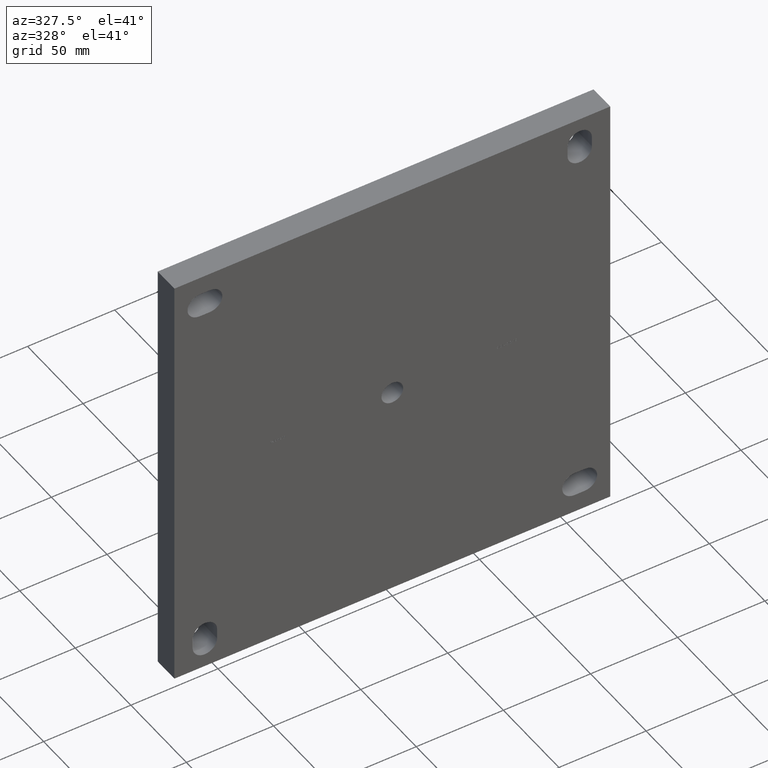
[diagram: clean part render]
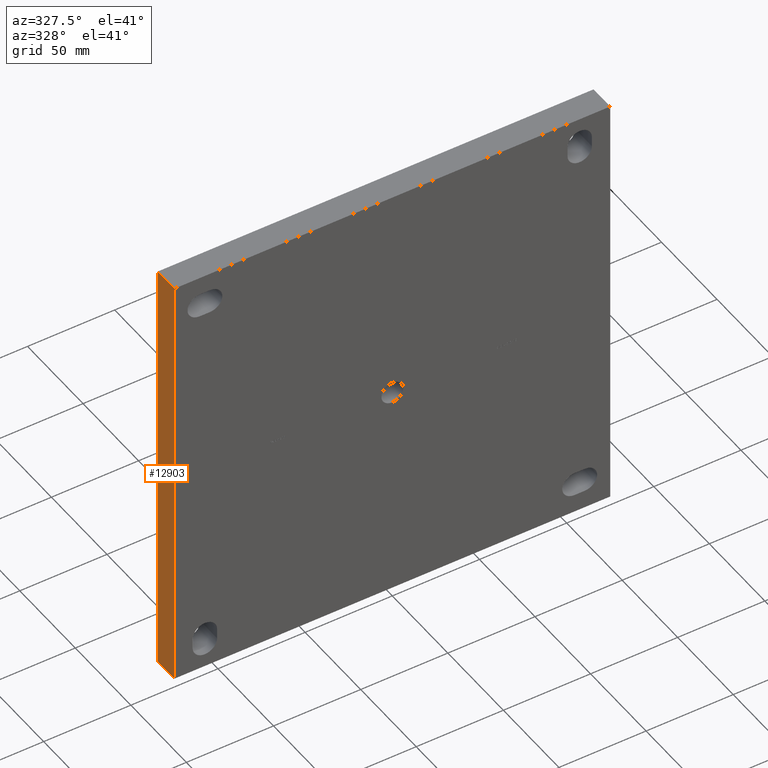
[diagram: same view with one face highlighted and labeled with its STEP entity id]
A machine part, auxiliary view. The second image highlights one B-rep face of the part: STEP entity #12903.
In plain terms, the highlighted planar face has unit normal (1, 0, -0).
Its self-contained STEP definition (entity closure, byte-faithful):
#53 = FACE_OUTER_BOUND ( 'NONE', #9171, .T. ) ;
#97 = VECTOR ( 'NONE', #4592, 1000.000000000000000 ) ;
#729 = EDGE_CURVE ( 'NONE', #4932, #4427, #12748, .T. ) ;
#918 = AXIS2_PLACEMENT_3D ( 'NONE', #8990, #13225, #13267 ) ;
#1365 = VERTEX_POINT ( 'NONE', #1394 ) ;
#1375 = ORIENTED_EDGE ( 'NONE', *, *, #729, .F. ) ;
#1394 = CARTESIAN_POINT ( 'NONE',  ( -124.9999999999999858, 15.00000000000000000, -124.9999999999999858 ) ) ;
#1727 = PLANE ( 'NONE',  #918 ) ;
#1779 = ORIENTED_EDGE ( 'NONE', *, *, #3617, .F. ) ;
#3583 = LINE ( 'NONE', #4635, #97 ) ;
#3617 = EDGE_CURVE ( 'NONE', #1365, #4932, #3583, .T. ) ;
#3826 = ORIENTED_EDGE ( 'NONE', *, *, #9795, .T. ) ;
#4145 = CARTESIAN_POINT ( 'NONE',  ( -124.9999999999999574, 0.000000000000000000, 124.9999999999999716 ) ) ;
#4225 = CARTESIAN_POINT ( 'NONE',  ( -124.9999999999999574, 15.00000000000000000, 124.9999999999999716 ) ) ;
#4427 = VERTEX_POINT ( 'NONE', #4145 ) ;
#4592 = DIRECTION ( 'NONE',  ( 1.110223024625156787E-16, 0.000000000000000000, 1.000000000000000000 ) ) ;
#4635 = CARTESIAN_POINT ( 'NONE',  ( -124.9999999999999858, 15.00000000000000000, -124.9999999999999858 ) ) ;
#4869 = DIRECTION ( 'NONE',  ( 1.110223024625156787E-16, 0.000000000000000000, 1.000000000000000000 ) ) ;
#4932 = VERTEX_POINT ( 'NONE', #4225 ) ;
#5332 = VECTOR ( 'NONE', #4869, 1000.000000000000000 ) ;
#5467 = DIRECTION ( 'NONE',  ( -0.000000000000000000, -1.000000000000000000, -0.000000000000000000 ) ) ;
#7776 = VECTOR ( 'NONE', #5467, 1000.000000000000000 ) ;
#8990 = CARTESIAN_POINT ( 'NONE',  ( -124.9999999999999858, 15.00000000000000000, -124.9999999999999858 ) ) ;
#9171 = EDGE_LOOP ( 'NONE', ( #9181, #1375, #1779, #3826 ) ) ;
#9181 = ORIENTED_EDGE ( 'NONE', *, *, #13447, .T. ) ;
#9545 = LINE ( 'NONE', #11762, #13392 ) ;
#9609 = VERTEX_POINT ( 'NONE', #10820 ) ;
#9795 = EDGE_CURVE ( 'NONE', #1365, #9609, #9545, .T. ) ;
#10081 = CARTESIAN_POINT ( 'NONE',  ( -124.9999999999999858, 0.000000000000000000, -124.9999999999999858 ) ) ;
#10659 = CARTESIAN_POINT ( 'NONE',  ( -124.9999999999999574, 15.00000000000000000, 124.9999999999999716 ) ) ;
#10820 = CARTESIAN_POINT ( 'NONE',  ( -124.9999999999999858, 0.000000000000000000, -124.9999999999999858 ) ) ;
#11762 = CARTESIAN_POINT ( 'NONE',  ( -124.9999999999999858, 15.00000000000000000, -124.9999999999999858 ) ) ;
#12748 = LINE ( 'NONE', #10659, #7776 ) ;
#12801 = DIRECTION ( 'NONE',  ( -0.000000000000000000, -1.000000000000000000, -0.000000000000000000 ) ) ;
#12903 = ADVANCED_FACE ( 'NONE', ( #53 ), #1727, .F. ) ;
#13225 = DIRECTION ( 'NONE',  ( 1.000000000000000000, 0.000000000000000000, -1.110223024625156787E-16 ) ) ;
#13267 = DIRECTION ( 'NONE',  ( -1.110223024625156787E-16, 0.000000000000000000, -1.000000000000000000 ) ) ;
#13392 = VECTOR ( 'NONE', #12801, 1000.000000000000000 ) ;
#13447 = EDGE_CURVE ( 'NONE', #9609, #4427, #13635, .T. ) ;
#13635 = LINE ( 'NONE', #10081, #5332 ) ;